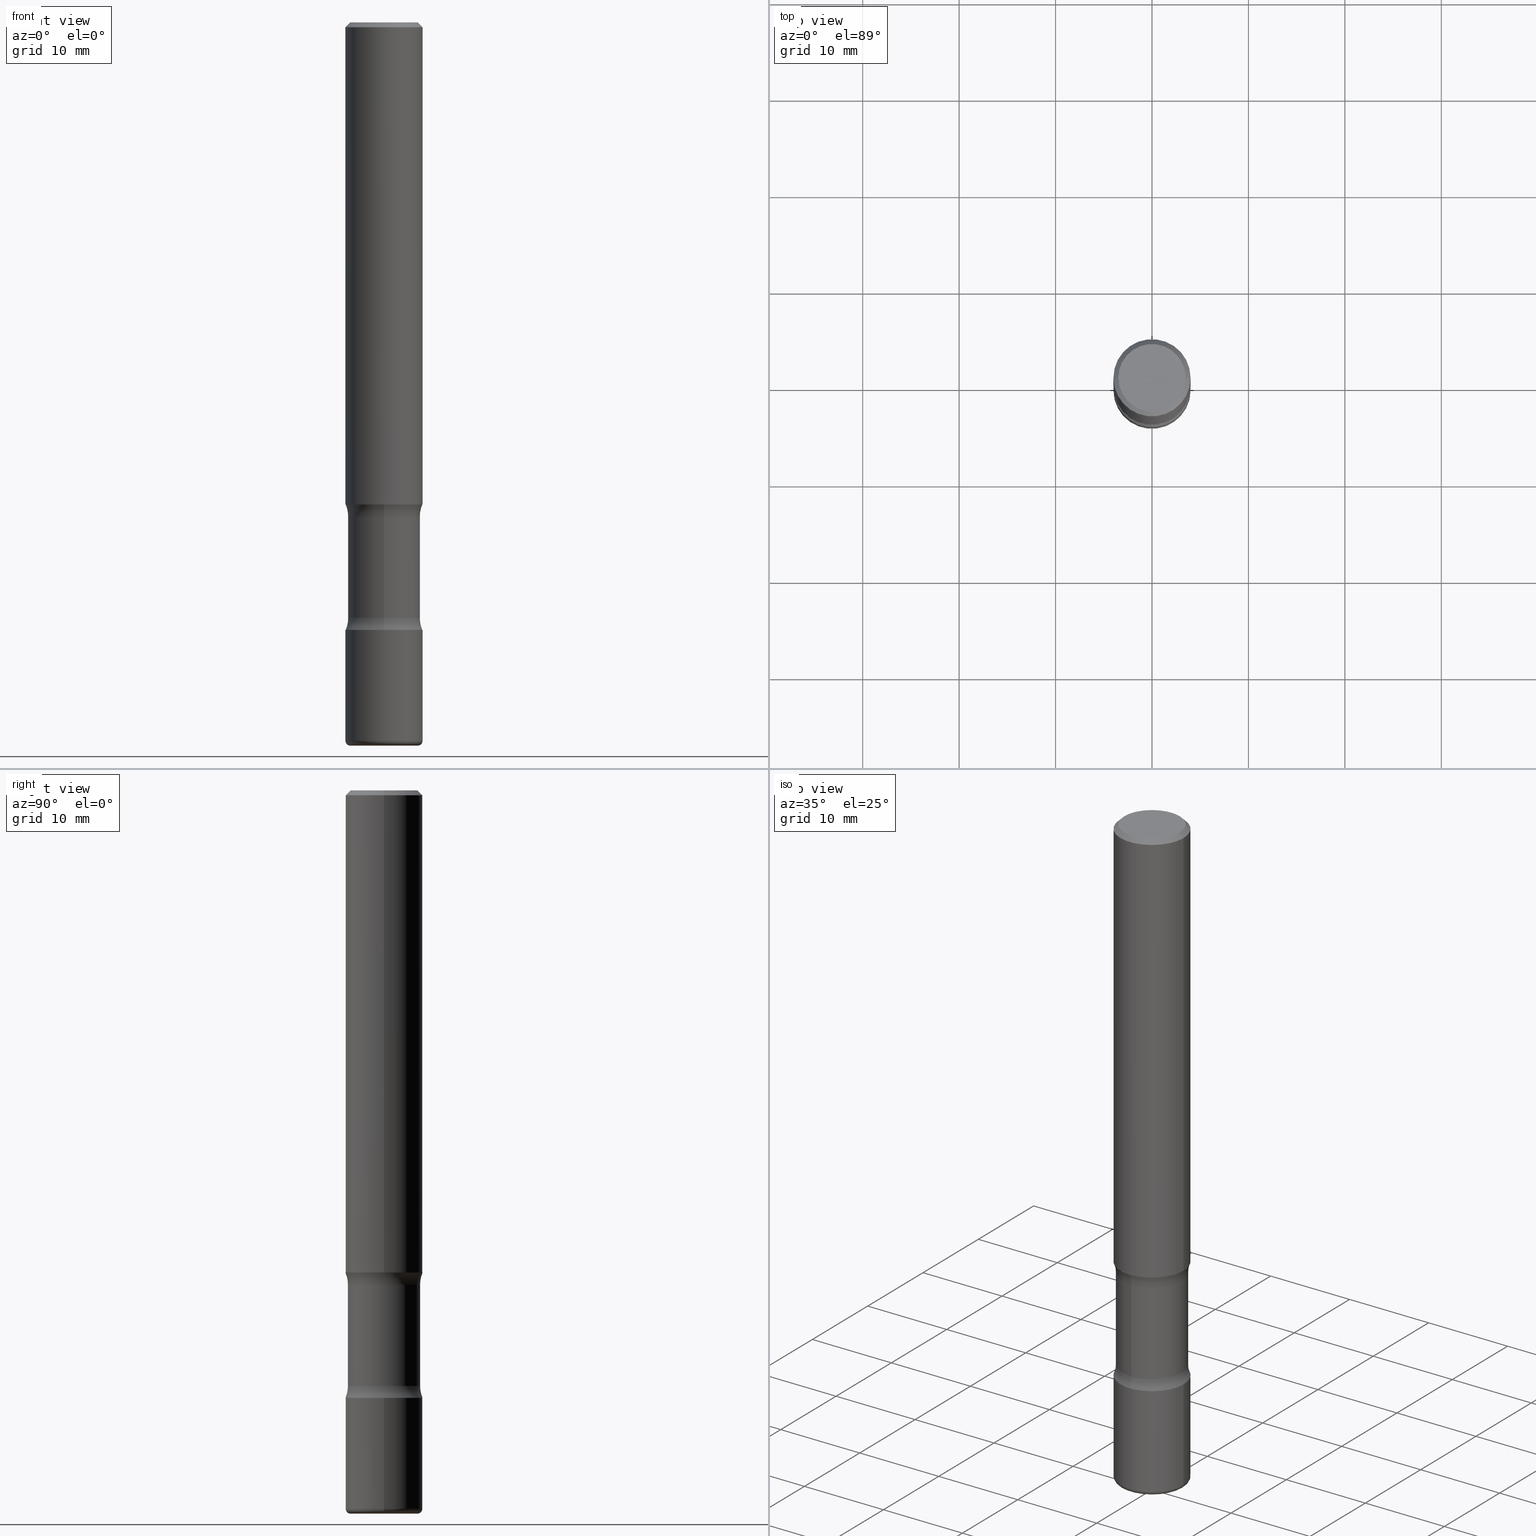
[diagram: canonical four-view strip — front | top / right | iso, engineering-drawing reading convention]
A machine part, canonical four-view strip (front | top / right | iso — engineering-drawing reading convention). The complete STEP part file that produces these views, byte-faithful:
ISO-10303-21;
HEADER;
FILE_DESCRIPTION (( 'STEP AP203' ),
    '1' );
FILE_NAME ('44774.STEP',
    '2024-03-02T03:06:02',
    ( '' ),
    ( '' ),
    'SwSTEP 2.0',
    'SolidWorks 2023',
    '' );
FILE_SCHEMA (( 'CONFIG_CONTROL_DESIGN' ));
ENDSEC;

DATA;
#1 = EDGE_CURVE ( 'NONE', #41, #525, #328, .T. ) ;
#2 = EDGE_LOOP ( 'NONE', ( #207, #387, #296, #484 ) ) ;
#3 = ORIENTED_EDGE ( 'NONE', *, *, #345, .T. ) ;
#4 = CARTESIAN_POINT ( 'NONE',  ( 6.065740826861612418E-29, -8.660270312866537270E-15, -2.480399999999999494 ) ) ;
#5 = COORDINATED_UNIVERSAL_TIME_OFFSET ( 5, 0, .BEHIND. ) ;
#6 = DIRECTION ( 'NONE',  ( 2.474888810202925163E-29, -3.449350218607033250E-15, -1.000000000000000000 ) ) ;
#7 = ORIENTED_EDGE ( 'NONE', *, *, #412, .T. ) ;
#8 = CLOSED_SHELL ( 'NONE', ( #256, #502, #144, #36, #55, #88, #377, #72 ) ) ;
#9 = CIRCLE ( 'NONE', #553, 0.1575000000000001399 ) ;
#10 = PLANE ( 'NONE',  #407 ) ;
#11 = CARTESIAN_POINT ( 'NONE',  ( 0.1374999999999999278, -1.046838268059731900E-15, 4.268512490107428597E-18 ) ) ;
#12 = DIRECTION ( 'NONE',  ( -6.982962677686265922E-15, -1.000000000000000000, 0.000000000000000000 ) ) ;
#13 = EDGE_CURVE ( 'NONE', #525, #466, #244, .T. ) ;
#14 = DIRECTION ( 'NONE',  ( 2.438088387897960049E-29, -3.491481338843145188E-15, -1.000000000000000000 ) ) ;
#15 = DIRECTION ( 'NONE',  ( -1.000000000000000000, 7.105427357600978193E-15, 0.000000000000000000 ) ) ;
#16 = ORIENTED_EDGE ( 'NONE', *, *, #13, .T. ) ;
#17 = EDGE_LOOP ( 'NONE', ( #189, #435, #331, #509 ) ) ;
#18 = ORIENTED_EDGE ( 'NONE', *, *, #22, .F. ) ;
#19 = DIRECTION ( 'NONE',  ( -2.438088387897960049E-29, 3.491481338843145188E-15, 1.000000000000000000 ) ) ;
#20 = VECTOR ( 'NONE', #104, 39.37007874015748143 ) ;
#21 = FACE_OUTER_BOUND ( 'NONE', #311, .T. ) ;
#22 = EDGE_CURVE ( 'NONE', #390, #161, #194, .T. ) ;
#23 = ORIENTED_EDGE ( 'NONE', *, *, #426, .F. ) ;
#24 = CIRCLE ( 'NONE', #79, 0.1575000000000001676 ) ;
#25 = DIRECTION ( 'NONE',  ( 1.000000000000000000, -6.982962677686265922E-15, 4.876176775795935232E-29 ) ) ;
#26 = EDGE_CURVE ( 'NONE', #557, #235, #218, .T. ) ;
#27 = DIRECTION ( 'NONE',  ( 1.000000000000000000, -6.982962677686267499E-15, 0.000000000000000000 ) ) ;
#28 = VERTEX_POINT ( 'NONE', #61 ) ;
#29 = CARTESIAN_POINT ( 'NONE',  ( 7.172804555421624566E-29, -1.024086391496083050E-14, -2.933100000000000041 ) ) ;
#30 = SECURITY_CLASSIFICATION_LEVEL ( 'unclassified' ) ;
#31 = VECTOR ( 'NONE', #102, 39.37007874015748143 ) ;
#32 = CARTESIAN_POINT ( 'NONE',  ( 6.065740826861612418E-29, -8.660270312866537270E-15, -2.480399999999999494 ) ) ;
#33 = VERTEX_POINT ( 'NONE', #137 ) ;
#34 = ORIENTED_EDGE ( 'NONE', *, *, #345, .F. ) ;
#35 = CARTESIAN_POINT ( 'NONE',  ( -0.1574999999999999178, 1.029986994958723590E-15, -0.02000000000000000042 ) ) ;
#36 = ADVANCED_FACE ( 'NONE', ( #227 ), #164, .F. ) ;
#37 = SHAPE_DEFINITION_REPRESENTATION ( #330, #362 ) ;
#38 = EDGE_CURVE ( 'NONE', #525, #215, #58, .T. ) ;
#39 = CARTESIAN_POINT ( 'NONE',  ( 7.234878300801473340E-29, -1.028974335613649852E-14, -2.952799999999999869 ) ) ;
#40 = DATE_TIME_ROLE ( 'classification_date' ) ;
#41 = VERTEX_POINT ( 'NONE', #494 ) ;
#42 = CIRCLE ( 'NONE', #47, 0.1378000000000001724 ) ;
#43 = APPROVAL_PERSON_ORGANIZATION ( #250, #272, #44 ) ;
#44 = APPROVAL_ROLE ( '' ) ;
#45 = EDGE_LOOP ( 'NONE', ( #221, #107, #153, #406 ) ) ;
#46 = EDGE_CURVE ( 'NONE', #464, #133, #264, .T. ) ;
#47 = AXIS2_PLACEMENT_3D ( 'NONE', #183, #251, #123 ) ;
#48 = CIRCLE ( 'NONE', #360, 0.1575000000000001399 ) ;
#49 = EDGE_LOOP ( 'NONE', ( #476, #202, #414, #439 ) ) ;
#50 = APPROVAL_ROLE ( '' ) ;
#51 = DIRECTION ( 'NONE',  ( 7.105427357601001859E-15, 1.000000000000000000, -3.491481338843145583E-15 ) ) ;
#52 = ORIENTED_EDGE ( 'NONE', *, *, #1, .F. ) ;
#53 = DIRECTION ( 'NONE',  ( -2.445468806185136597E-29, 3.491481338843145583E-15, 1.000000000000000000 ) ) ;
#54 = CARTESIAN_POINT ( 'NONE',  ( 4.934565814225900815E-29, -7.045252187264551691E-15, -2.017840424602956428 ) ) ;
#55 = ADVANCED_FACE ( 'NONE', ( #398 ), #395, .F. ) ;
#56 = CC_DESIGN_SECURITY_CLASSIFICATION ( #396, ( #213 ) ) ;
#57 = FACE_OUTER_BOUND ( 'NONE', #243, .T. ) ;
#58 = LINE ( 'NONE', #131, #424 ) ;
#59 = DIRECTION ( 'NONE',  ( 2.474888810202925163E-29, -3.449350218607032856E-15, -1.000000000000000000 ) ) ;
#60 = CC_DESIGN_PERSON_AND_ORGANIZATION_ASSIGNMENT ( #300, #429, ( #213 ) ) ;
#61 = CARTESIAN_POINT ( 'NONE',  ( 0.1574999999999999178, -1.150358061425878486E-15, -0.02000000000000000042 ) ) ;
#62 = VERTEX_POINT ( 'NONE', #11 ) ;
#63 = DIRECTION ( 'NONE',  ( 2.474888810202925163E-29, -3.449350218607033250E-15, -1.000000000000000000 ) ) ;
#64 = DIRECTION ( 'NONE',  ( 6.982962677686265922E-15, 1.000000000000000000, -3.449350218607032856E-15 ) ) ;
#65 = CARTESIAN_POINT ( 'NONE',  ( 1.028939550557143658E-15, 0.1473499999999897114, -2.952800000000000313 ) ) ;
#66 = CIRCLE ( 'NONE', #336, 0.1574999999999999178 ) ;
#67 = LOCAL_TIME ( 22, 6, 2.000000000000000000, #5 ) ;
#68 = CARTESIAN_POINT ( 'NONE',  ( -1.043851414335219820E-46, 1.490343170380447200E-32, 4.268512490100411279E-18 ) ) ;
#69 = DIRECTION ( 'NONE',  ( 2.474888810202925163E-29, -3.449350218607033250E-15, -1.000000000000000000 ) ) ;
#70 = LINE ( 'NONE', #162, #443 ) ;
#71 = DIRECTION ( 'NONE',  ( 1.000000000000000000, -6.860497997771530774E-15, 4.841314837039559601E-29 ) ) ;
#72 = ADVANCED_FACE ( 'NONE', ( #352 ), #389, .T. ) ;
#73 = PERSON_AND_ORGANIZATION ( #548, #329 ) ;
#74 = ORIENTED_EDGE ( 'NONE', *, *, #478, .F. ) ;
#75 = DIRECTION ( 'NONE',  ( -2.445468806185136597E-29, 3.491481338843145583E-15, 1.000000000000000000 ) ) ;
#76 = DIRECTION ( 'NONE',  ( 1.000000000000000000, -6.982962677686271444E-15, 0.000000000000000000 ) ) ;
#77 = CALENDAR_DATE ( 2024, 1, 3 ) ;
#78 = AXIS2_PLACEMENT_3D ( 'NONE', #367, #163, #157 ) ;
#79 = AXIS2_PLACEMENT_3D ( 'NONE', #142, #488, #27 ) ;
#80 = DIMENSIONAL_EXPONENTS ( 1.000000000000000000, 0.000000000000000000, 0.000000000000000000, 0.000000000000000000, 0.000000000000000000, 0.000000000000000000, 0.000000000000000000 ) ;
#81 = FACE_OUTER_BOUND ( 'NONE', #487, .T. ) ;
#82 = PERSON_AND_ORGANIZATION ( #548, #329 ) ;
#83 = CIRCLE ( 'NONE', #167, 0.1473499999999999810 ) ;
#84 = DATE_TIME_ROLE ( 'creation_date' ) ;
#85 = EDGE_LOOP ( 'NONE', ( #363, #445, #534, #171 ) ) ;
#86 = DIRECTION ( 'NONE',  ( 1.000000000000000000, 0.000000000000000000, 0.000000000000000000 ) ) ;
#87 = ORIENTED_EDGE ( 'NONE', *, *, #222, .T. ) ;
#88 = ADVANCED_FACE ( 'NONE', ( #404 ), #309, .F. ) ;
#89 = AXIS2_PLACEMENT_3D ( 'NONE', #529, #6, #400 ) ;
#90 = CIRCLE ( 'NONE', #245, 0.1250000000000000000 ) ;
#91 = APPLICATION_PROTOCOL_DEFINITION ( 'international standard', 'config_control_design', 1994, #166 ) ;
#92 = CARTESIAN_POINT ( 'NONE',  ( -0.1378000000000001724, -9.261736025083411415E-15, -2.933100000000000041 ) ) ;
#93 = DIRECTION ( 'NONE',  ( 1.000000000000000000, -6.982962677686268288E-15, 0.000000000000000000 ) ) ;
#94 = EDGE_CURVE ( 'NONE', #98, #28, #182, .T. ) ;
#95 = EDGE_LOOP ( 'NONE', ( #436, #74, #225, #125 ) ) ;
#96 = EDGE_CURVE ( 'NONE', #464, #312, #83, .T. ) ;
#97 = DIRECTION ( 'NONE',  ( 2.438088387897960049E-29, -3.491481338843145188E-15, -1.000000000000000000 ) ) ;
#98 = VERTEX_POINT ( 'NONE', #392 ) ;
#99 = CARTESIAN_POINT ( 'NONE',  ( 5.945080357611152317E-29, -8.487999141114716497E-15, -2.431059575397043204 ) ) ;
#100 = FACE_OUTER_BOUND ( 'NONE', #2, .T. ) ;
#101 = CARTESIAN_POINT ( 'NONE',  ( 1.901809885267914178E-15, 0.2723499999999915433, -2.431059575397044092 ) ) ;
#102 = DIRECTION ( 'NONE',  ( -2.445468806185136877E-29, 3.491481338843145188E-15, 1.000000000000000000 ) ) ;
#103 = ORIENTED_EDGE ( 'NONE', *, *, #550, .T. ) ;
#104 = DIRECTION ( 'NONE',  ( -2.445468806185136877E-29, 3.491481338843145188E-15, 1.000000000000000000 ) ) ;
#105 = ADVANCED_FACE ( 'NONE', ( #110 ), #393, .T. ) ;
#106 = MANIFOLD_SOLID_BREP ( 'Body-Move/Copy2[1]', #288 ) ;
#107 = ORIENTED_EDGE ( 'NONE', *, *, #262, .F. ) ;
#108 = DIRECTION ( 'NONE',  ( 2.474888810202925163E-29, -3.449350218607033250E-15, -1.000000000000000000 ) ) ;
#109 = EDGE_CURVE ( 'NONE', #41, #423, #42, .T. ) ;
#110 = FACE_OUTER_BOUND ( 'NONE', #45, .T. ) ;
#111 = CYLINDRICAL_SURFACE ( 'NONE', #337, 0.1575000000000001399 ) ;
#112 = ORIENTED_EDGE ( 'NONE', *, *, #478, .T. ) ;
#113 = DIRECTION ( 'NONE',  ( -2.445468806185136597E-29, 3.491481338843145583E-15, 1.000000000000000000 ) ) ;
#114 = AXIS2_PLACEMENT_3D ( 'NONE', #463, #71, #549 ) ;
#115 = CARTESIAN_POINT ( 'NONE',  ( 7.220980290903470182E-29, -1.030964609733603853E-14, -2.952799999999999869 ) ) ;
#116 = LOCAL_TIME ( 22, 6, 2.000000000000000000, #217 ) ;
#117 = CARTESIAN_POINT ( 'NONE',  ( 0.1575000000000001399, -1.099816621735587875E-15, 7.679978421878605039E-30 ) ) ;
#118 = DIRECTION ( 'NONE',  ( 1.000000000000000000, -6.982962677686273021E-15, 4.883557194083115143E-29 ) ) ;
#119 = PRODUCT_DEFINITION ( 'UNKNOWN', '', #213, #348 ) ;
#120 = DIRECTION ( 'NONE',  ( -1.000000000000000000, 6.982962677686266711E-15, 0.000000000000000000 ) ) ;
#121 = APPROVAL_DATE_TIME ( #373, #340 ) ;
#122 = EDGE_LOOP ( 'NONE', ( #150, #214 ) ) ;
#123 = DIRECTION ( 'NONE',  ( 1.000000000000000000, -6.982962677686271444E-15, 0.000000000000000000 ) ) ;
#124 = PERSON_AND_ORGANIZATION_ROLE ( 'design_owner' ) ;
#125 = ORIENTED_EDGE ( 'NONE', *, *, #286, .T. ) ;
#126 = CIRCLE ( 'NONE', #469, 0.1378000000000001724 ) ;
#127 = LOCAL_TIME ( 22, 6, 2.000000000000000000, #350 ) ;
#128 = CARTESIAN_POINT ( 'NONE',  ( 4.890937612370273159E-31, -6.982962677686291609E-17, -0.02000000000000000042 ) ) ;
#129 =( CONVERSION_BASED_UNIT ( 'INCH', #136 ) LENGTH_UNIT ( ) NAMED_UNIT ( #80 ) );
#130 = CARTESIAN_POINT ( 'NONE',  ( 0.000000000000000000, 0.000000000000000000, 0.000000000000000000 ) ) ;
#131 = CARTESIAN_POINT ( 'NONE',  ( -0.1575000000000001399, 1.119104808822158787E-15, -7.747322767151482590E-30 ) ) ;
#132 = AXIS2_PLACEMENT_3D ( 'NONE', #413, #204, #417 ) ;
#133 = VERTEX_POINT ( 'NONE', #261 ) ;
#134 = CIRCLE ( 'NONE', #533, 0.1473500000000000087 ) ;
#135 = CYLINDRICAL_SURFACE ( 'NONE', #148, 0.1575000000000000289 ) ;
#136 = LENGTH_MEASURE_WITH_UNIT ( LENGTH_MEASURE( 0.02539999999999999897 ), #521 );
#137 = CARTESIAN_POINT ( 'NONE',  ( 1.028939550557130839E-15, 0.1473499999999915433, -2.431059575397043648 ) ) ;
#138 = ORIENTED_EDGE ( 'NONE', *, *, #301, .T. ) ;
#139 = PLANE ( 'NONE',  #560 ) ;
#140 = EDGE_LOOP ( 'NONE', ( #458, #16, #138, #278 ) ) ;
#141 = EDGE_LOOP ( 'NONE', ( #428, #7, #441, #545 ) ) ;
#142 = CARTESIAN_POINT ( 'NONE',  ( 4.813905344975440714E-29, -6.872981015512730918E-15, -1.968499999999999694 ) ) ;
#143 = FACE_OUTER_BOUND ( 'NONE', #85, .T. ) ;
#144 = ADVANCED_FACE ( 'NONE', ( #100 ), #192, .F. ) ;
#145 = CARTESIAN_POINT ( 'NONE',  ( 6.065740826861612418E-29, -8.660270312866537270E-15, -2.480399999999999494 ) ) ;
#146 = LINE ( 'NONE', #65, #543 ) ;
#147 = VECTOR ( 'NONE', #438, 39.37007874015748143 ) ;
#148 = AXIS2_PLACEMENT_3D ( 'NONE', #440, #230, #234 ) ;
#149 = CARTESIAN_POINT ( 'NONE',  ( 4.920957309659253149E-29, -7.064740340351969652E-15, -2.017840424602956428 ) ) ;
#150 = ORIENTED_EDGE ( 'NONE', *, *, #26, .F. ) ;
#151 = DIRECTION ( 'NONE',  ( 1.000000000000000000, -6.982962677686267499E-15, 0.000000000000000000 ) ) ;
#152 = CARTESIAN_POINT ( 'NONE',  ( 0.000000000000000000, 0.000000000000000000, 0.000000000000000000 ) ) ;
#153 = ORIENTED_EDGE ( 'NONE', *, *, #253, .T. ) ;
#154 = DIRECTION ( 'NONE',  ( -1.000000000000000000, 6.982962677686265922E-15, -4.876176775795935793E-29 ) ) ;
#155 = CARTESIAN_POINT ( 'NONE',  ( 1.028939550557120386E-15, 0.1473499999999929033, -2.017840424602956872 ) ) ;
#156 = AXIS2_PLACEMENT_3D ( 'NONE', #355, #224, #64 ) ;
#157 = DIRECTION ( 'NONE',  ( 1.000000000000000000, -6.982962677686268288E-15, 0.000000000000000000 ) ) ;
#158 = EDGE_CURVE ( 'NONE', #235, #557, #479, .T. ) ;
#159 = LOCAL_TIME ( 22, 6, 2.000000000000000000, #420 ) ;
#160 = PRODUCT ( '44774', '44774', '', ( #381 ) ) ;
#161 = VERTEX_POINT ( 'NONE', #35 ) ;
#162 = CARTESIAN_POINT ( 'NONE',  ( -0.1574999999999999178, 1.029986994958723590E-15, -0.02000000000000000042 ) ) ;
#163 = DIRECTION ( 'NONE',  ( -2.445468806185136597E-29, 3.491481338843145583E-15, 1.000000000000000000 ) ) ;
#164 = TOROIDAL_SURFACE ( 'NONE', #531, 0.2723499999999999810, 0.1250000000000000555 ) ;
#165 = APPROVAL_ROLE ( '' ) ;
#166 = APPLICATION_CONTEXT ( 'configuration controlled 3d designs of mechanical parts and assemblies' ) ;
#167 = AXIS2_PLACEMENT_3D ( 'NONE', #149, #325, #295 ) ;
#168 = TOROIDAL_SURFACE ( 'NONE', #480, 0.2723500000000000365, 0.1250000000000000000 ) ;
#169 = CARTESIAN_POINT ( 'NONE',  ( 0.1378000000000001724, -1.127189835432120758E-14, -2.952799999999999869 ) ) ;
#170 = APPROVAL_DATE_TIME ( #341, #473 ) ;
#171 = ORIENTED_EDGE ( 'NONE', *, *, #222, .F. ) ;
#172 = DATE_AND_TIME ( #383, #116 ) ;
#173 = TOROIDAL_SURFACE ( 'NONE', #385, 0.2723500000000000365, 0.1250000000000000000 ) ;
#174 = CC_DESIGN_PERSON_AND_ORGANIZATION_ASSIGNMENT ( #73, #338, ( #213 ) ) ;
#175 = ORIENTED_EDGE ( 'NONE', *, *, #391, .T. ) ;
#176 = EDGE_CURVE ( 'NONE', #423, #41, #126, .T. ) ;
#177 = FACE_OUTER_BOUND ( 'NONE', #302, .T. ) ;
#178 = CALENDAR_DATE ( 2024, 1, 3 ) ;
#179 = ORIENTED_EDGE ( 'NONE', *, *, #301, .F. ) ;
#180 = VECTOR ( 'NONE', #304, 39.37007874015748143 ) ;
#181 = CIRCLE ( 'NONE', #498, 0.1250000000000000000 ) ;
#182 = LINE ( 'NONE', #490, #31 ) ;
#183 = CARTESIAN_POINT ( 'NONE',  ( 7.220980290903470182E-29, -1.030964609733603853E-14, -2.952799999999999869 ) ) ;
#184 = PLANE ( 'NONE',  #279 ) ;
#185 = DIRECTION ( 'NONE',  ( -1.000000000000000000, 6.982962677686265922E-15, -4.876176775795935793E-29 ) ) ;
#186 = CARTESIAN_POINT ( 'NONE',  ( -0.1575000000000000289, 1.119104808822157998E-15, -7.747322767151478386E-30 ) ) ;
#187 = CARTESIAN_POINT ( 'NONE',  ( 0.1574999999999999178, -1.150358061425878486E-15, -0.02000000000000000042 ) ) ;
#188 = DIRECTION ( 'NONE',  ( 6.982962677686265133E-15, 1.000000000000000000, -3.707971487837479733E-15 ) ) ;
#189 = ORIENTED_EDGE ( 'NONE', *, *, #46, .F. ) ;
#190 = ORIENTED_EDGE ( 'NONE', *, *, #46, .T. ) ;
#191 = DIRECTION ( 'NONE',  ( -2.445468806185136597E-29, 3.491481338843145583E-15, 1.000000000000000000 ) ) ;
#192 = TOROIDAL_SURFACE ( 'NONE', #497, 0.2723499999999999810, 0.1250000000000000555 ) ;
#193 =( GEOMETRIC_REPRESENTATION_CONTEXT ( 3 ) GLOBAL_UNCERTAINTY_ASSIGNED_CONTEXT ( ( #220 ) ) GLOBAL_UNIT_ASSIGNED_CONTEXT ( ( #129, #558, #474 ) ) REPRESENTATION_CONTEXT ( 'NONE', 'WORKASPACE' ) );
#194 = LINE ( 'NONE', #186, #147 ) ;
#195 = VERTEX_POINT ( 'NONE', #199 ) ;
#196 = FACE_OUTER_BOUND ( 'NONE', #95, .T. ) ;
#197 = PLANE ( 'NONE',  #506 ) ;
#198 = EDGE_CURVE ( 'NONE', #466, #525, #512, .T. ) ;
#199 = CARTESIAN_POINT ( 'NONE',  ( -0.1374999999999999278, 9.950721815702923357E-16, 4.268512490093574228E-18 ) ) ;
#200 = ADVANCED_FACE ( 'NONE', ( #81 ), #559, .T. ) ;
#201 = PERSON_AND_ORGANIZATION ( #548, #329 ) ;
#202 = ORIENTED_EDGE ( 'NONE', *, *, #22, .T. ) ;
#203 = CIRCLE ( 'NONE', #342, 0.1374999999999999278 ) ;
#204 = DIRECTION ( 'NONE',  ( -6.982962677686266711E-15, -1.000000000000000000, 3.491481338843145583E-15 ) ) ;
#205 = DATE_AND_TIME ( #294, #159 ) ;
#206 = DIRECTION ( 'NONE',  ( 2.474888810202925163E-29, -3.449350218607033250E-15, -1.000000000000000000 ) ) ;
#207 = ORIENTED_EDGE ( 'NONE', *, *, #96, .F. ) ;
#208 = DIRECTION ( 'NONE',  ( -0.7071067811865472397, 2.468850131082253905E-15, -0.7071067811865477948 ) ) ;
#209 = EDGE_CURVE ( 'NONE', #312, #464, #359, .T. ) ;
#210 = APPROVAL_STATUS ( 'not_yet_approved' ) ;
#211 = CARTESIAN_POINT ( 'NONE',  ( -0.1575000000000000844, -9.121759106138672895E-15, -2.933100000000000041 ) ) ;
#212 = CIRCLE ( 'NONE', #477, 0.1250000000000000555 ) ;
#213 = PRODUCT_DEFINITION_FORMATION_WITH_SPECIFIED_SOURCE ( 'ANY', '', #160, .NOT_KNOWN. ) ;
#214 = ORIENTED_EDGE ( 'NONE', *, *, #158, .F. ) ;
#215 = VERTEX_POINT ( 'NONE', #376 ) ;
#216 = EDGE_CURVE ( 'NONE', #464, #235, #265, .T. ) ;
#217 = COORDINATED_UNIVERSAL_TIME_OFFSET ( 5, 0, .BEHIND. ) ;
#218 = CIRCLE ( 'NONE', #298, 0.1575000000000001399 ) ;
#219 = VECTOR ( 'NONE', #530, 39.37007874015748143 ) ;
#220 = UNCERTAINTY_MEASURE_WITH_UNIT (LENGTH_MEASURE( 1.000000000000000082E-05 ), #129, 'distance_accuracy_value', 'NONE');
#221 = ORIENTED_EDGE ( 'NONE', *, *, #412, .F. ) ;
#222 = EDGE_CURVE ( 'NONE', #423, #466, #384, .T. ) ;
#223 = PERSON_AND_ORGANIZATION ( #548, #329 ) ;
#224 = DIRECTION ( 'NONE',  ( 2.474888810202925163E-29, -3.449350218607032856E-15, -1.000000000000000000 ) ) ;
#225 = ORIENTED_EDGE ( 'NONE', *, *, #482, .T. ) ;
#226 = DIRECTION ( 'NONE',  ( 1.000000000000000000, -6.982962677686268288E-15, 0.000000000000000000 ) ) ;
#227 = FACE_OUTER_BOUND ( 'NONE', #511, .T. ) ;
#228 = CONICAL_SURFACE ( 'NONE', #316, 0.1574999999999999178, 0.7853981633974479459 ) ;
#229 = DIRECTION ( 'NONE',  ( 1.000000000000000000, -6.982962677686265922E-15, 4.876176775795935232E-29 ) ) ;
#230 = DIRECTION ( 'NONE',  ( -2.445468806185136597E-29, 3.491481338843145583E-15, 1.000000000000000000 ) ) ;
#231 = CARTESIAN_POINT ( 'NONE',  ( 7.172804555421624566E-29, -1.024086391496083050E-14, -2.933100000000000041 ) ) ;
#232 = ORIENTED_EDGE ( 'NONE', *, *, #442, .T. ) ;
#233 = CARTESIAN_POINT ( 'NONE',  ( 5.943628762121094077E-29, -8.490077908476165751E-15, -2.431059575397043204 ) ) ;
#234 = DIRECTION ( 'NONE',  ( 1.000000000000000000, -6.982962677686267499E-15, 4.876176775795935232E-29 ) ) ;
#235 = VERTEX_POINT ( 'NONE', #289 ) ;
#236 = ORIENTED_EDGE ( 'NONE', *, *, #94, .T. ) ;
#237 = AXIS2_PLACEMENT_3D ( 'NONE', #29, #333, #118 ) ;
#238 = DIRECTION ( 'NONE',  ( 1.000000000000000000, -6.982962677686265922E-15, 4.876176775795935793E-29 ) ) ;
#239 = CIRCLE ( 'NONE', #290, 0.1574999999999999178 ) ;
#240 = CARTESIAN_POINT ( 'NONE',  ( 9.601573681818610811E-16, 0.1374999999999999278, -4.779444278458821021E-16 ) ) ;
#241 = ORIENTED_EDGE ( 'NONE', *, *, #421, .T. ) ;
#242 = CARTESIAN_POINT ( 'NONE',  ( 7.172804555421624566E-29, -1.024086391496083050E-14, -2.933100000000000041 ) ) ;
#243 = EDGE_LOOP ( 'NONE', ( #284, #232 ) ) ;
#244 = CIRCLE ( 'NONE', #303, 0.1575000000000001399 ) ;
#245 = AXIS2_PLACEMENT_3D ( 'NONE', #101, #483, #495 ) ;
#246 = CYLINDRICAL_SURFACE ( 'NONE', #254, 0.1473500000000000087 ) ;
#247 = ADVANCED_FACE ( 'NONE', ( #370 ), #228, .T. ) ;
#248 = CIRCLE ( 'NONE', #434, 0.1575000000000001399 ) ;
#249 = PERSON_AND_ORGANIZATION ( #548, #329 ) ;
#250 = PERSON_AND_ORGANIZATION ( #548, #329 ) ;
#251 = DIRECTION ( 'NONE',  ( -2.445468806185136597E-29, 3.491481338843145583E-15, 1.000000000000000000 ) ) ;
#252 = APPROVAL_DATE_TIME ( #172, #272 ) ;
#253 = EDGE_CURVE ( 'NONE', #195, #161, #70, .T. ) ;
#254 = AXIS2_PLACEMENT_3D ( 'NONE', #39, #63, #188 ) ;
#255 = CC_DESIGN_APPROVAL ( #473, ( #119 ) ) ;
#256 = ADVANCED_FACE ( 'NONE', ( #468 ), #246, .T. ) ;
#257 = DIRECTION ( 'NONE',  ( 0.000000000000000000, 0.000000000000000000, 1.000000000000000000 ) ) ;
#258 = DIRECTION ( 'NONE',  ( 6.982962677686265922E-15, 1.000000000000000000, -3.449350218607033250E-15 ) ) ;
#259 = EDGE_LOOP ( 'NONE', ( #112, #103 ) ) ;
#260 = FACE_OUTER_BOUND ( 'NONE', #346, .T. ) ;
#261 = CARTESIAN_POINT ( 'NONE',  ( -1.045711407310266063E-15, -0.1473500000000085020, -2.431059575397042760 ) ) ;
#262 = EDGE_CURVE ( 'NONE', #195, #62, #203, .T. ) ;
#263 = DIRECTION ( 'NONE',  ( -2.445468806185136597E-29, 3.491481338843145583E-15, 1.000000000000000000 ) ) ;
#264 = LINE ( 'NONE', #452, #180 ) ;
#265 = CIRCLE ( 'NONE', #114, 0.1250000000000000555 ) ;
#266 = CC_DESIGN_PERSON_AND_ORGANIZATION_ASSIGNMENT ( #223, #510, ( #119 ) ) ;
#267 = DIRECTION ( 'NONE',  ( -2.445468806185136597E-29, 3.491481338843145583E-15, 1.000000000000000000 ) ) ;
#268 = CARTESIAN_POINT ( 'NONE',  ( -1.045711407310277305E-15, -0.1473500000000070587, -2.017840424602955984 ) ) ;
#269 = ORIENTED_EDGE ( 'NONE', *, *, #198, .T. ) ;
#270 = ORIENTED_EDGE ( 'NONE', *, *, #286, .F. ) ;
#271 = FACE_OUTER_BOUND ( 'NONE', #448, .T. ) ;
#272 = APPROVAL ( #427, 'UNSPECIFIED' ) ;
#273 = MANIFOLD_SOLID_BREP ( 'Body-Move/Copy2[4]', #8 ) ;
#274 = DIRECTION ( 'NONE',  ( 2.474888810202925163E-29, -3.449350218607033250E-15, -1.000000000000000000 ) ) ;
#275 = DIRECTION ( 'NONE',  ( 6.982962677686265922E-15, 1.000000000000000000, -3.449350218607033250E-15 ) ) ;
#276 = ADVANCED_FACE ( 'NONE', ( #409 ), #197, .F. ) ;
#277 = CARTESIAN_POINT ( 'NONE',  ( 6.065740826861612418E-29, -8.660270312866537270E-15, -2.480399999999999494 ) ) ;
#278 = ORIENTED_EDGE ( 'NONE', *, *, #442, .F. ) ;
#279 = AXIS2_PLACEMENT_3D ( 'NONE', #240, #446, #154 ) ;
#280 = DIRECTION ( 'NONE',  ( 1.000000000000000000, -6.982962677686266711E-15, 0.000000000000000000 ) ) ;
#281 = DIRECTION ( 'NONE',  ( 2.474888810202925163E-29, -3.449350218607033250E-15, -1.000000000000000000 ) ) ;
#282 = CARTESIAN_POINT ( 'NONE',  ( 5.943628762121094077E-29, -8.490077908476165751E-15, -2.431059575397043204 ) ) ;
#283 = DIRECTION ( 'NONE',  ( 6.982962677686265133E-15, 1.000000000000000000, -3.707971487837480522E-15 ) ) ;
#284 = ORIENTED_EDGE ( 'NONE', *, *, #485, .T. ) ;
#285 = DIRECTION ( 'NONE',  ( 2.474888810202925163E-29, -3.449350218607033250E-15, -1.000000000000000000 ) ) ;
#286 = EDGE_CURVE ( 'NONE', #33, #133, #455, .T. ) ;
#287 = EDGE_CURVE ( 'NONE', #312, #33, #146, .T. ) ;
#288 = CLOSED_SHELL ( 'NONE', ( #462, #505, #499, #200, #332, #431 ) ) ;
#289 = CARTESIAN_POINT ( 'NONE',  ( -1.080528434648969237E-15, -0.1575000000000070233, -1.968499999999999472 ) ) ;
#290 = AXIS2_PLACEMENT_3D ( 'NONE', #128, #388, #520 ) ;
#291 = COORDINATED_UNIVERSAL_TIME_OFFSET ( 5, 0, .BEHIND. ) ;
#292 = DIRECTION ( 'NONE',  ( 1.000000000000000000, -6.982962677686273021E-15, 4.883557194083115143E-29 ) ) ;
#293 = CARTESIAN_POINT ( 'NONE',  ( 4.934565814225900815E-29, -7.045252187264551691E-15, -2.017840424602956428 ) ) ;
#294 = CALENDAR_DATE ( 2024, 1, 3 ) ;
#295 = DIRECTION ( 'NONE',  ( 6.982962677686265133E-15, 1.000000000000000000, -3.707971487837480522E-15 ) ) ;
#296 = ORIENTED_EDGE ( 'NONE', *, *, #158, .T. ) ;
#297 = EDGE_CURVE ( 'NONE', #312, #557, #212, .T. ) ;
#298 = AXIS2_PLACEMENT_3D ( 'NONE', #351, #274, #522 ) ;
#299 = CC_DESIGN_APPROVAL ( #340, ( #396 ) ) ;
#300 = PERSON_AND_ORGANIZATION ( #548, #329 ) ;
#301 = EDGE_CURVE ( 'NONE', #466, #514, #493, .T. ) ;
#302 = EDGE_LOOP ( 'NONE', ( #18, #3, #236, #23 ) ) ;
#303 = AXIS2_PLACEMENT_3D ( 'NONE', #231, #532, #322 ) ;
#304 = DIRECTION ( 'NONE',  ( 2.474888810202925163E-29, -3.449350218607032856E-15, -1.000000000000000000 ) ) ;
#305 = AXIS2_PLACEMENT_3D ( 'NONE', #130, #257, #86 ) ;
#306 = DIRECTION ( 'NONE',  ( -1.000000000000000000, 6.982962677686266711E-15, 0.000000000000000000 ) ) ;
#307 = ORIENTED_EDGE ( 'NONE', *, *, #485, .F. ) ;
#308 = CARTESIAN_POINT ( 'NONE',  ( 6.065740826861612418E-29, -8.660270312866537270E-15, -2.480399999999999494 ) ) ;
#309 = PLANE ( 'NONE',  #433 ) ;
#310 = ADVANCED_FACE ( 'NONE', ( #271 ), #184, .F. ) ;
#311 = EDGE_LOOP ( 'NONE', ( #269, #472, #307, #179 ) ) ;
#312 = VERTEX_POINT ( 'NONE', #155 ) ;
#313 = DIRECTION ( 'NONE',  ( 2.474888810202925163E-29, -3.449350218607033250E-15, -1.000000000000000000 ) ) ;
#314 = CARTESIAN_POINT ( 'NONE',  ( 5.945080357611152317E-29, -8.487999141114716497E-15, -2.431059575397043204 ) ) ;
#315 = DIRECTION ( 'NONE',  ( -6.982962677686265922E-15, -1.000000000000000000, 3.449350218607032856E-15 ) ) ;
#316 = AXIS2_PLACEMENT_3D ( 'NONE', #504, #546, #120 ) ;
#317 = ORIENTED_EDGE ( 'NONE', *, *, #287, .F. ) ;
#318 = CIRCLE ( 'NONE', #379, 0.1374999999999999278 ) ;
#319 = CARTESIAN_POINT ( 'NONE',  ( 1.901809885267903923E-15, 0.2723499999999929866, -2.017840424602957317 ) ) ;
#320 = DIRECTION ( 'NONE',  ( 2.445468806185136597E-29, -3.491481338843145583E-15, -1.000000000000000000 ) ) ;
#321 = DIRECTION ( 'NONE',  ( -2.445468806185136597E-29, 3.491481338843145583E-15, 1.000000000000000000 ) ) ;
#322 = DIRECTION ( 'NONE',  ( 1.000000000000000000, -6.982962677686268288E-15, 0.000000000000000000 ) ) ;
#323 = CARTESIAN_POINT ( 'NONE',  ( 1.099816621735648420E-15, 0.1574999999999914524, -2.480399999999999938 ) ) ;
#324 = CC_DESIGN_PERSON_AND_ORGANIZATION_ASSIGNMENT ( #556, #124, ( #160 ) ) ;
#325 = DIRECTION ( 'NONE',  ( 2.474888810202925163E-29, -3.449350218607033250E-15, -1.000000000000000000 ) ) ;
#326 = DIRECTION ( 'NONE',  ( 6.982962677686266711E-15, 1.000000000000000000, -3.707971487837479733E-15 ) ) ;
#327 = ORIENTED_EDGE ( 'NONE', *, *, #26, .T. ) ;
#328 = CIRCLE ( 'NONE', #465, 0.01969999999999985998 ) ;
#329 = ORGANIZATION ( 'UNSPECIFIED', 'UNSPECIFIED', '' ) ;
#330 = PRODUCT_DEFINITION_SHAPE ( 'NONE', 'NONE',  #119 ) ;
#331 = ORIENTED_EDGE ( 'NONE', *, *, #287, .T. ) ;
#332 = ADVANCED_FACE ( 'NONE', ( #496 ), #403, .T. ) ;
#333 = DIRECTION ( 'NONE',  ( -2.445468806185136597E-29, 3.491481338843145583E-15, 1.000000000000000000 ) ) ;
#334 = EDGE_CURVE ( 'NONE', #28, #161, #66, .T. ) ;
#335 = DIRECTION ( 'NONE',  ( -2.445468806185136597E-29, 3.491481338843145583E-15, 1.000000000000000000 ) ) ;
#336 = AXIS2_PLACEMENT_3D ( 'NONE', #535, #113, #280 ) ;
#337 = AXIS2_PLACEMENT_3D ( 'NONE', #152, #263, #229 ) ;
#338 = PERSON_AND_ORGANIZATION_ROLE ( 'design_supplier' ) ;
#339 = CARTESIAN_POINT ( 'NONE',  ( 4.890937612370273159E-31, -6.982962677686291609E-17, -0.02000000000000000042 ) ) ;
#340 = APPROVAL ( #210, 'UNSPECIFIED' ) ;
#341 = DATE_AND_TIME ( #178, #127 ) ;
#342 = AXIS2_PLACEMENT_3D ( 'NONE', #356, #267, #454 ) ;
#343 = DATE_AND_TIME ( #471, #67 ) ;
#344 = ORIENTED_EDGE ( 'NONE', *, *, #372, .F. ) ;
#345 = EDGE_CURVE ( 'NONE', #390, #98, #378, .T. ) ;
#346 = EDGE_LOOP ( 'NONE', ( #453, #547 ) ) ;
#347 = EDGE_CURVE ( 'NONE', #133, #33, #134, .T. ) ;
#348 = DESIGN_CONTEXT ( 'detailed design', #166, 'design' ) ;
#349 = DIRECTION ( 'NONE',  ( -1.000000000000000000, 6.982962677686265922E-15, -4.876176775795935793E-29 ) ) ;
#350 = COORDINATED_UNIVERSAL_TIME_OFFSET ( 5, 0, .BEHIND. ) ;
#351 = CARTESIAN_POINT ( 'NONE',  ( 4.798845244918734808E-29, -6.894547935961596556E-15, -1.968499999999999694 ) ) ;
#352 = FACE_OUTER_BOUND ( 'NONE', #17, .T. ) ;
#353 = DIRECTION ( 'NONE',  ( -2.445468806185136597E-29, 3.491481338843145583E-15, 1.000000000000000000 ) ) ;
#354 = FACE_OUTER_BOUND ( 'NONE', #461, .T. ) ;
#355 = CARTESIAN_POINT ( 'NONE',  ( 4.813905344975440714E-29, -6.872981015512730918E-15, -1.968499999999999694 ) ) ;
#356 = CARTESIAN_POINT ( 'NONE',  ( -1.043851414335219820E-46, 1.490343170380447200E-32, 4.268512490100411279E-18 ) ) ;
#357 = DIRECTION ( 'NONE',  ( -2.474888810202925163E-29, 3.449350218607032856E-15, 1.000000000000000000 ) ) ;
#358 = DIRECTION ( 'NONE',  ( -2.445468806185136597E-29, 3.491481338843145583E-15, 1.000000000000000000 ) ) ;
#359 = CIRCLE ( 'NONE', #368, 0.1473499999999999810 ) ;
#360 = AXIS2_PLACEMENT_3D ( 'NONE', #308, #397, #394 ) ;
#361 = CARTESIAN_POINT ( 'NONE',  ( 4.813905344975440714E-29, -6.872981015512730918E-15, -1.968499999999999694 ) ) ;
#362 = ADVANCED_BREP_SHAPE_REPRESENTATION ( '44774', ( #106, #475, #273, #305 ), #193 ) ;
#363 = ORIENTED_EDGE ( 'NONE', *, *, #176, .T. ) ;
#364 = CARTESIAN_POINT ( 'NONE',  ( -0.1575000000000001676, -2.352300512322635166E-15, -1.968499999999999694 ) ) ;
#365 = ORIENTED_EDGE ( 'NONE', *, *, #550, .F. ) ;
#366 = DIRECTION ( 'NONE',  ( 1.000000000000000000, -6.860497997771530774E-15, 4.841314837039559601E-29 ) ) ;
#367 = CARTESIAN_POINT ( 'NONE',  ( 7.172804555421624566E-29, -1.024086391496083050E-14, -2.933100000000000041 ) ) ;
#368 = AXIS2_PLACEMENT_3D ( 'NONE', #500, #281, #283 ) ;
#369 = AXIS2_PLACEMENT_3D ( 'NONE', #380, #75, #430 ) ;
#370 = FACE_OUTER_BOUND ( 'NONE', #141, .T. ) ;
#371 = ORIENTED_EDGE ( 'NONE', *, *, #13, .F. ) ;
#372 = EDGE_CURVE ( 'NONE', #98, #390, #24, .T. ) ;
#373 = DATE_AND_TIME ( #77, #544 ) ;
#374 = DIRECTION ( 'NONE',  ( 6.982962677686265133E-15, 1.000000000000000000, -3.469013325287950138E-15 ) ) ;
#375 = VERTEX_POINT ( 'NONE', #323 ) ;
#376 = CARTESIAN_POINT ( 'NONE',  ( -0.1575000000000001399, -8.331462305091523914E-15, -2.480399999999999494 ) ) ;
#377 = ADVANCED_FACE ( 'NONE', ( #196 ), #173, .F. ) ;
#378 = CIRCLE ( 'NONE', #491, 0.1575000000000001676 ) ;
#379 = AXIS2_PLACEMENT_3D ( 'NONE', #68, #358, #538 ) ;
#380 = CARTESIAN_POINT ( 'NONE',  ( 0.000000000000000000, 0.000000000000000000, 0.000000000000000000 ) ) ;
#381 = MECHANICAL_CONTEXT ( 'NONE', #432, 'mechanical' ) ;
#382 = ORIENTED_EDGE ( 'NONE', *, *, #216, .F. ) ;
#383 = CALENDAR_DATE ( 2024, 1, 3 ) ;
#384 = CIRCLE ( 'NONE', #132, 0.01969999999999985998 ) ;
#385 = AXIS2_PLACEMENT_3D ( 'NONE', #99, #108, #275 ) ;
#386 = CC_DESIGN_DATE_AND_TIME_ASSIGNMENT ( #343, #84, ( #119 ) ) ;
#387 = ORIENTED_EDGE ( 'NONE', *, *, #216, .T. ) ;
#388 = DIRECTION ( 'NONE',  ( -2.445468806185136597E-29, 3.491481338843145583E-15, 1.000000000000000000 ) ) ;
#389 = CYLINDRICAL_SURFACE ( 'NONE', #89, 0.1473500000000000087 ) ;
#390 = VERTEX_POINT ( 'NONE', #364 ) ;
#391 = EDGE_CURVE ( 'NONE', #411, #133, #181, .T. ) ;
#392 = CARTESIAN_POINT ( 'NONE',  ( 0.1575000000000001676, -7.972797637248319976E-15, -1.968499999999999694 ) ) ;
#393 = CONICAL_SURFACE ( 'NONE', #489, 0.1574999999999999178, 0.7853981633974479459 ) ;
#394 = DIRECTION ( 'NONE',  ( 6.982962677686265133E-15, 1.000000000000000000, -3.469013325287950138E-15 ) ) ;
#395 = PLANE ( 'NONE',  #156 ) ;
#396 = SECURITY_CLASSIFICATION ( '', '', #30 ) ;
#397 = DIRECTION ( 'NONE',  ( 2.474888810202925163E-29, -3.449350218607033250E-15, -1.000000000000000000 ) ) ;
#398 = FACE_OUTER_BOUND ( 'NONE', #122, .T. ) ;
#399 = DIRECTION ( 'NONE',  ( 2.474888810202925163E-29, -3.449350218607033250E-15, -1.000000000000000000 ) ) ;
#400 = DIRECTION ( 'NONE',  ( 6.982962677686265133E-15, 1.000000000000000000, -3.707971487837479733E-15 ) ) ;
#401 = ADVANCED_FACE ( 'NONE', ( #418 ), #554, .T. ) ;
#402 = ORIENTED_EDGE ( 'NONE', *, *, #109, .T. ) ;
#403 = CYLINDRICAL_SURFACE ( 'NONE', #552, 0.1575000000000001399 ) ;
#404 = FACE_OUTER_BOUND ( 'NONE', #259, .T. ) ;
#405 = AXIS2_PLACEMENT_3D ( 'NONE', #233, #313, #326 ) ;
#406 = ORIENTED_EDGE ( 'NONE', *, *, #426, .T. ) ;
#407 = AXIS2_PLACEMENT_3D ( 'NONE', #524, #14, #185 ) ;
#408 = DIRECTION ( 'NONE',  ( -1.000000000000000000, 6.982962677686265922E-15, -4.883557194083112340E-29 ) ) ;
#409 = FACE_OUTER_BOUND ( 'NONE', #539, .T. ) ;
#410 = DIRECTION ( 'NONE',  ( 6.982962677686265922E-15, 1.000000000000000000, -3.449350218607033250E-15 ) ) ;
#411 = VERTEX_POINT ( 'NONE', #526 ) ;
#412 = EDGE_CURVE ( 'NONE', #62, #28, #456, .T. ) ;
#413 = CARTESIAN_POINT ( 'NONE',  ( 0.1378000000000001724, -1.120311617194599955E-14, -2.933100000000000041 ) ) ;
#414 = ORIENTED_EDGE ( 'NONE', *, *, #334, .F. ) ;
#415 = AXIS2_PLACEMENT_3D ( 'NONE', #460, #419, #542 ) ;
#416 = CIRCLE ( 'NONE', #457, 0.1575000000000001399 ) ;
#417 = DIRECTION ( 'NONE',  ( 1.000000000000000000, -6.982962677686279332E-15, 0.000000000000000000 ) ) ;
#418 = FACE_OUTER_BOUND ( 'NONE', #49, .T. ) ;
#419 = DIRECTION ( 'NONE',  ( 2.474888810202925163E-29, -3.449350218607033250E-15, -1.000000000000000000 ) ) ;
#420 = COORDINATED_UNIVERSAL_TIME_OFFSET ( 5, 0, .BEHIND. ) ;
#421 = EDGE_CURVE ( 'NONE', #62, #195, #318, .T. ) ;
#422 = DIRECTION ( 'NONE',  ( 6.982962677686265922E-15, 1.000000000000000000, -3.449350218607033250E-15 ) ) ;
#423 = VERTEX_POINT ( 'NONE', #169 ) ;
#424 = VECTOR ( 'NONE', #486, 39.37007874015748143 ) ;
#425 = CC_DESIGN_APPROVAL ( #272, ( #213 ) ) ;
#426 = EDGE_CURVE ( 'NONE', #161, #28, #239, .T. ) ;
#427 = APPROVAL_STATUS ( 'not_yet_approved' ) ;
#428 = ORIENTED_EDGE ( 'NONE', *, *, #421, .F. ) ;
#429 = PERSON_AND_ORGANIZATION_ROLE ( 'creator' ) ;
#430 = DIRECTION ( 'NONE',  ( 1.000000000000000000, -6.982962677686267499E-15, 4.876176775795935232E-29 ) ) ;
#431 = ADVANCED_FACE ( 'NONE', ( #57 ), #139, .F. ) ;
#432 = APPLICATION_CONTEXT ( 'configuration controlled 3d designs of mechanical parts and assemblies' ) ;
#433 = AXIS2_PLACEMENT_3D ( 'NONE', #145, #357, #315 ) ;
#434 = AXIS2_PLACEMENT_3D ( 'NONE', #451, #321, #226 ) ;
#435 = ORIENTED_EDGE ( 'NONE', *, *, #96, .T. ) ;
#436 = ORIENTED_EDGE ( 'NONE', *, *, #391, .F. ) ;
#437 = APPROVAL_STATUS ( 'not_yet_approved' ) ;
#438 = DIRECTION ( 'NONE',  ( -2.445468806185136877E-29, 3.491481338843145188E-15, 1.000000000000000000 ) ) ;
#439 = ORIENTED_EDGE ( 'NONE', *, *, #94, .F. ) ;
#440 = CARTESIAN_POINT ( 'NONE',  ( 0.000000000000000000, 0.000000000000000000, 0.000000000000000000 ) ) ;
#441 = ORIENTED_EDGE ( 'NONE', *, *, #334, .T. ) ;
#442 = EDGE_CURVE ( 'NONE', #215, #514, #248, .T. ) ;
#443 = VECTOR ( 'NONE', #208, 39.37007874015748143 ) ;
#444 = CARTESIAN_POINT ( 'NONE',  ( 0.1575000000000000844, -1.134068053669641877E-14, -2.933100000000000041 ) ) ;
#445 = ORIENTED_EDGE ( 'NONE', *, *, #1, .T. ) ;
#446 = DIRECTION ( 'NONE',  ( 2.438088387897960049E-29, -3.491481338843145188E-15, -1.000000000000000000 ) ) ;
#447 = ADVANCED_FACE ( 'NONE', ( #177 ), #135, .T. ) ;
#448 = EDGE_LOOP ( 'NONE', ( #449, #241 ) ) ;
#449 = ORIENTED_EDGE ( 'NONE', *, *, #262, .T. ) ;
#450 = CARTESIAN_POINT ( 'NONE',  ( 0.000000000000000000, 0.000000000000000000, 0.000000000000000000 ) ) ;
#451 = CARTESIAN_POINT ( 'NONE',  ( 6.065740826861612418E-29, -8.660270312866537270E-15, -2.480399999999999494 ) ) ;
#452 = CARTESIAN_POINT ( 'NONE',  ( -1.010894379971562693E-15, -0.1473500000000103061, -2.952799999999998981 ) ) ;
#453 = ORIENTED_EDGE ( 'NONE', *, *, #176, .F. ) ;
#454 = DIRECTION ( 'NONE',  ( 1.000000000000000000, -6.982962677686265922E-15, 4.876173381029102845E-29 ) ) ;
#455 = CIRCLE ( 'NONE', #405, 0.1473500000000000087 ) ;
#456 = LINE ( 'NONE', #187, #219 ) ;
#457 = AXIS2_PLACEMENT_3D ( 'NONE', #277, #53, #93 ) ;
#458 = ORIENTED_EDGE ( 'NONE', *, *, #38, .F. ) ;
#459 = CARTESIAN_POINT ( 'NONE',  ( 4.813905344975440714E-29, -6.872981015512730918E-15, -1.968499999999999694 ) ) ;
#460 = CARTESIAN_POINT ( 'NONE',  ( 4.798845244918734808E-29, -6.894547935961596556E-15, -1.968499999999999694 ) ) ;
#461 = EDGE_LOOP ( 'NONE', ( #365, #175, #527, #523 ) ) ;
#462 = ADVANCED_FACE ( 'NONE', ( #21 ), #111, .T. ) ;
#463 = CARTESIAN_POINT ( 'NONE',  ( -1.868456629693027212E-15, -0.2723500000000070309, -2.017840424602955540 ) ) ;
#464 = VERTEX_POINT ( 'NONE', #268 ) ;
#465 = AXIS2_PLACEMENT_3D ( 'NONE', #92, #51, #15 ) ;
#466 = VERTEX_POINT ( 'NONE', #444 ) ;
#467 = TOROIDAL_SURFACE ( 'NONE', #507, 0.1378000000000001724, 0.01969999999999987733 ) ;
#468 = FACE_OUTER_BOUND ( 'NONE', #492, .T. ) ;
#469 = AXIS2_PLACEMENT_3D ( 'NONE', #115, #551, #76 ) ;
#470 = APPROVAL_PERSON_ORGANIZATION ( #201, #340, #165 ) ;
#471 = CALENDAR_DATE ( 2024, 1, 3 ) ;
#472 = ORIENTED_EDGE ( 'NONE', *, *, #38, .T. ) ;
#473 = APPROVAL ( #437, 'UNSPECIFIED' ) ;
#474 =( NAMED_UNIT ( * ) SI_UNIT ( $, .STERADIAN. ) SOLID_ANGLE_UNIT ( ) );
#475 = MANIFOLD_SOLID_BREP ( 'Body-Move/Copy2[2]', #518 ) ;
#476 = ORIENTED_EDGE ( 'NONE', *, *, #372, .T. ) ;
#477 = AXIS2_PLACEMENT_3D ( 'NONE', #319, #408, #12 ) ;
#478 = EDGE_CURVE ( 'NONE', #375, #411, #48, .T. ) ;
#479 = CIRCLE ( 'NONE', #415, 0.1575000000000001399 ) ;
#480 = AXIS2_PLACEMENT_3D ( 'NONE', #314, #399, #422 ) ;
#481 = APPLICATION_PROTOCOL_DEFINITION ( 'international standard', 'config_control_design', 1994, #432 ) ;
#482 = EDGE_CURVE ( 'NONE', #375, #33, #90, .T. ) ;
#483 = DIRECTION ( 'NONE',  ( -1.000000000000000000, 6.982962677686265922E-15, -4.883557194083112340E-29 ) ) ;
#484 = ORIENTED_EDGE ( 'NONE', *, *, #297, .F. ) ;
#485 = EDGE_CURVE ( 'NONE', #514, #215, #416, .T. ) ;
#486 = DIRECTION ( 'NONE',  ( -2.445468806185136877E-29, 3.491481338843145188E-15, 1.000000000000000000 ) ) ;
#487 = EDGE_LOOP ( 'NONE', ( #52, #402, #87, #371 ) ) ;
#488 = DIRECTION ( 'NONE',  ( -2.445468806185136597E-29, 3.491481338843145583E-15, 1.000000000000000000 ) ) ;
#489 = AXIS2_PLACEMENT_3D ( 'NONE', #339, #320, #306 ) ;
#490 = CARTESIAN_POINT ( 'NONE',  ( 0.1575000000000000289, -1.099816621735587283E-15, 7.679978421878599434E-30 ) ) ;
#491 = AXIS2_PLACEMENT_3D ( 'NONE', #459, #353, #151 ) ;
#492 = EDGE_LOOP ( 'NONE', ( #515, #190, #270, #317 ) ) ;
#493 = LINE ( 'NONE', #117, #20 ) ;
#494 = CARTESIAN_POINT ( 'NONE',  ( -0.1378000000000001724, -9.226138656798647747E-15, -2.952799999999999869 ) ) ;
#495 = DIRECTION ( 'NONE',  ( -6.982962677686265922E-15, -1.000000000000000000, 0.000000000000000000 ) ) ;
#496 = FACE_OUTER_BOUND ( 'NONE', #140, .T. ) ;
#497 = AXIS2_PLACEMENT_3D ( 'NONE', #293, #285, #410 ) ;
#498 = AXIS2_PLACEMENT_3D ( 'NONE', #537, #366, #540 ) ;
#499 = ADVANCED_FACE ( 'NONE', ( #260 ), #10, .T. ) ;
#500 = CARTESIAN_POINT ( 'NONE',  ( 4.920957309659253149E-29, -7.064740340351969652E-15, -2.017840424602956428 ) ) ;
#501 = CARTESIAN_POINT ( 'NONE',  ( 0.1575000000000001399, -9.760086934602125539E-15, -2.480399999999999494 ) ) ;
#502 = ADVANCED_FACE ( 'NONE', ( #354 ), #168, .F. ) ;
#503 = CARTESIAN_POINT ( 'NONE',  ( 1.099816621735635798E-15, 0.1574999999999932565, -1.968500000000000361 ) ) ;
#504 = CARTESIAN_POINT ( 'NONE',  ( 4.890937612370273159E-31, -6.982962677686291609E-17, -0.02000000000000000042 ) ) ;
#505 = ADVANCED_FACE ( 'NONE', ( #143 ), #467, .T. ) ;
#506 = AXIS2_PLACEMENT_3D ( 'NONE', #361, #19, #238 ) ;
#507 = AXIS2_PLACEMENT_3D ( 'NONE', #242, #335, #292 ) ;
#508 = PERSON_AND_ORGANIZATION_ROLE ( 'classification_officer' ) ;
#509 = ORIENTED_EDGE ( 'NONE', *, *, #347, .F. ) ;
#510 = PERSON_AND_ORGANIZATION_ROLE ( 'creator' ) ;
#511 = EDGE_LOOP ( 'NONE', ( #382, #536, #555, #327 ) ) ;
#512 = CIRCLE ( 'NONE', #78, 0.1575000000000001399 ) ;
#513 = CC_DESIGN_DATE_AND_TIME_ASSIGNMENT ( #205, #40, ( #396 ) ) ;
#514 = VERTEX_POINT ( 'NONE', #501 ) ;
#515 = ORIENTED_EDGE ( 'NONE', *, *, #209, .T. ) ;
#516 = DIRECTION ( 'NONE',  ( 2.474888810202925163E-29, -3.449350218607033250E-15, -1.000000000000000000 ) ) ;
#517 = PRODUCT_RELATED_PRODUCT_CATEGORY ( 'detail', '', ( #160 ) ) ;
#518 = CLOSED_SHELL ( 'NONE', ( #401, #247, #105, #310, #276, #447 ) ) ;
#519 = APPROVAL_PERSON_ORGANIZATION ( #249, #473, #50 ) ;
#520 = DIRECTION ( 'NONE',  ( 1.000000000000000000, -6.982962677686266711E-15, 0.000000000000000000 ) ) ;
#521 =( LENGTH_UNIT ( ) NAMED_UNIT ( * ) SI_UNIT ( $, .METRE. ) );
#522 = DIRECTION ( 'NONE',  ( 6.982962677686265133E-15, 1.000000000000000000, -3.469013325287950138E-15 ) ) ;
#523 = ORIENTED_EDGE ( 'NONE', *, *, #482, .F. ) ;
#524 = CARTESIAN_POINT ( 'NONE',  ( 7.220980290903470182E-29, -1.030964609733603853E-14, -2.952799999999999869 ) ) ;
#525 = VERTEX_POINT ( 'NONE', #211 ) ;
#526 = CARTESIAN_POINT ( 'NONE',  ( -1.080528434648956220E-15, -0.1575000000000087719, -2.480399999999999050 ) ) ;
#527 = ORIENTED_EDGE ( 'NONE', *, *, #347, .T. ) ;
#528 = DIRECTION ( 'NONE',  ( 6.982962677686266711E-15, 1.000000000000000000, -3.707971487837479733E-15 ) ) ;
#529 = CARTESIAN_POINT ( 'NONE',  ( 7.234878300801473340E-29, -1.028974335613649852E-14, -2.952799999999999869 ) ) ;
#530 = DIRECTION ( 'NONE',  ( 0.7071067811865472397, -7.319954787623254468E-15, -0.7071067811865477948 ) ) ;
#531 = AXIS2_PLACEMENT_3D ( 'NONE', #54, #516, #258 ) ;
#532 = DIRECTION ( 'NONE',  ( -2.445468806185136597E-29, 3.491481338843145583E-15, 1.000000000000000000 ) ) ;
#533 = AXIS2_PLACEMENT_3D ( 'NONE', #282, #69, #528 ) ;
#534 = ORIENTED_EDGE ( 'NONE', *, *, #198, .F. ) ;
#535 = CARTESIAN_POINT ( 'NONE',  ( 4.890937612370273159E-31, -6.982962677686291609E-17, -0.02000000000000000042 ) ) ;
#536 = ORIENTED_EDGE ( 'NONE', *, *, #209, .F. ) ;
#537 = CARTESIAN_POINT ( 'NONE',  ( -1.868456629693017352E-15, -0.2723500000000085297, -2.431059575397042316 ) ) ;
#538 = DIRECTION ( 'NONE',  ( 1.000000000000000000, -6.982962677686265922E-15, 4.876173381029102845E-29 ) ) ;
#539 = EDGE_LOOP ( 'NONE', ( #344, #34 ) ) ;
#540 = DIRECTION ( 'NONE',  ( 6.860497997771530774E-15, 1.000000000000000000, 0.000000000000000000 ) ) ;
#541 = CC_DESIGN_PERSON_AND_ORGANIZATION_ASSIGNMENT ( #82, #508, ( #396 ) ) ;
#542 = DIRECTION ( 'NONE',  ( 6.982962677686265133E-15, 1.000000000000000000, -3.469013325287950138E-15 ) ) ;
#543 = VECTOR ( 'NONE', #59, 39.37007874015748143 ) ;
#544 = LOCAL_TIME ( 22, 6, 2.000000000000000000, #291 ) ;
#545 = ORIENTED_EDGE ( 'NONE', *, *, #253, .F. ) ;
#546 = DIRECTION ( 'NONE',  ( 2.445468806185136597E-29, -3.491481338843145583E-15, -1.000000000000000000 ) ) ;
#547 = ORIENTED_EDGE ( 'NONE', *, *, #109, .F. ) ;
#548 = PERSON ( 'UNSPECIFIED', 'UNSPECIFIED', 'UNSPECIFIED', ('UNSPECIFIED'), ('UNSPECIFIED'), ('UNSPECIFIED') ) ;
#549 = DIRECTION ( 'NONE',  ( 6.860497997771530774E-15, 1.000000000000000000, 0.000000000000000000 ) ) ;
#550 = EDGE_CURVE ( 'NONE', #411, #375, #9, .T. ) ;
#551 = DIRECTION ( 'NONE',  ( -2.445468806185136597E-29, 3.491481338843145583E-15, 1.000000000000000000 ) ) ;
#552 = AXIS2_PLACEMENT_3D ( 'NONE', #450, #191, #25 ) ;
#553 = AXIS2_PLACEMENT_3D ( 'NONE', #32, #206, #374 ) ;
#554 = CYLINDRICAL_SURFACE ( 'NONE', #369, 0.1575000000000000289 ) ;
#555 = ORIENTED_EDGE ( 'NONE', *, *, #297, .T. ) ;
#556 = PERSON_AND_ORGANIZATION ( #548, #329 ) ;
#557 = VERTEX_POINT ( 'NONE', #503 ) ;
#558 =( NAMED_UNIT ( * ) PLANE_ANGLE_UNIT ( ) SI_UNIT ( $, .RADIAN. ) );
#559 = TOROIDAL_SURFACE ( 'NONE', #237, 0.1378000000000001724, 0.01969999999999987733 ) ;
#560 = AXIS2_PLACEMENT_3D ( 'NONE', #4, #97, #349 ) ;
ENDSEC;
END-ISO-10303-21;
